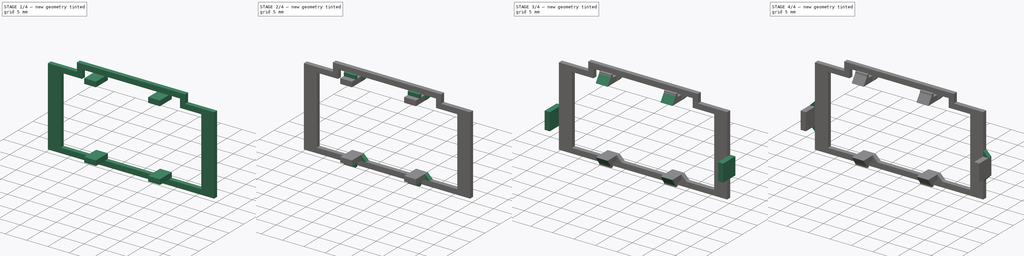
[diagram: build sequence overview — one tinted view per stage of 4, left to right]
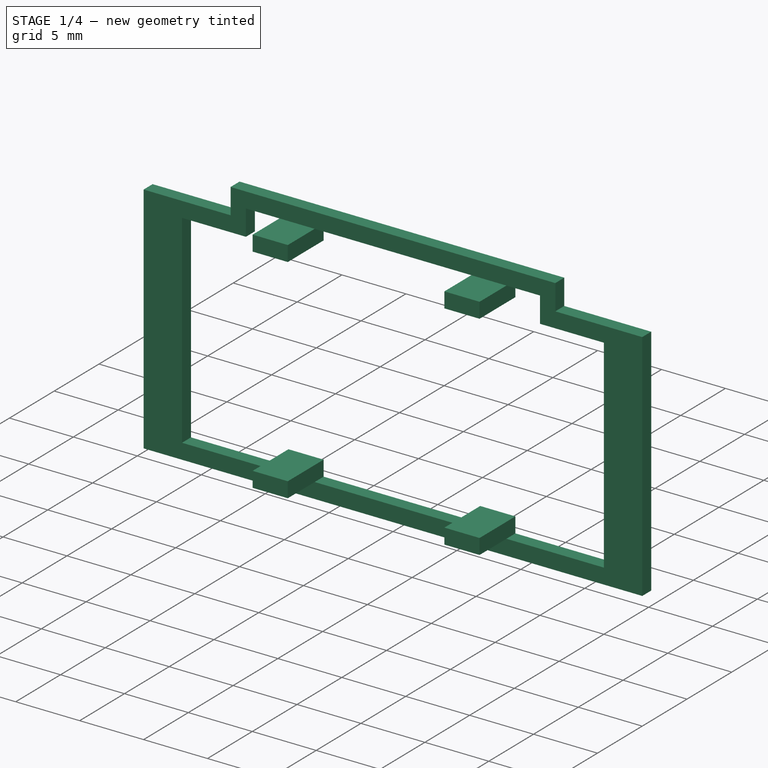
[diagram: stage 1 of 4 — iso view after this stage's code; geometry added in this stage tinted green]
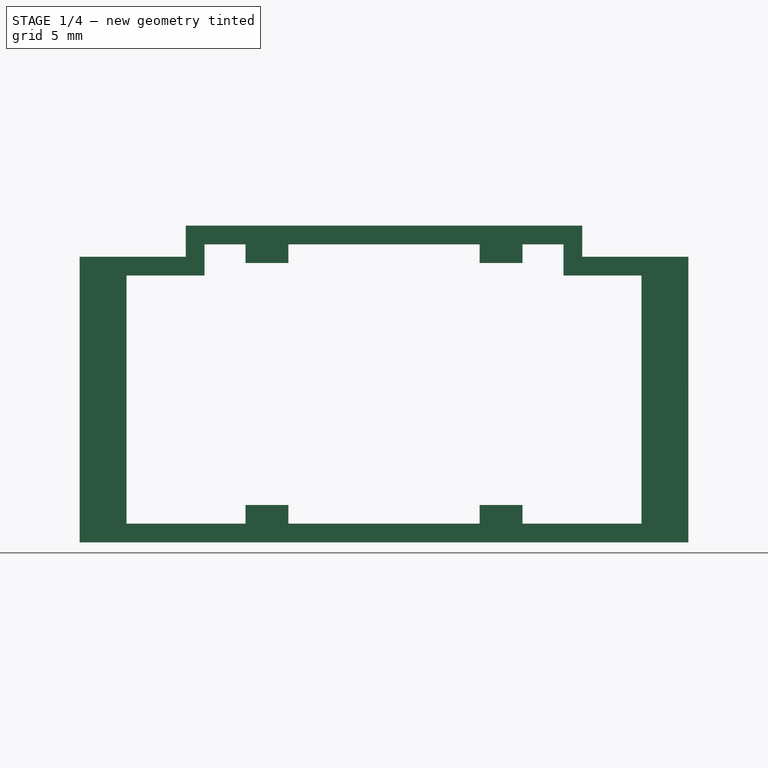
[diagram: stage 1 of 4 — front view after this stage's code; geometry added in this stage tinted green]
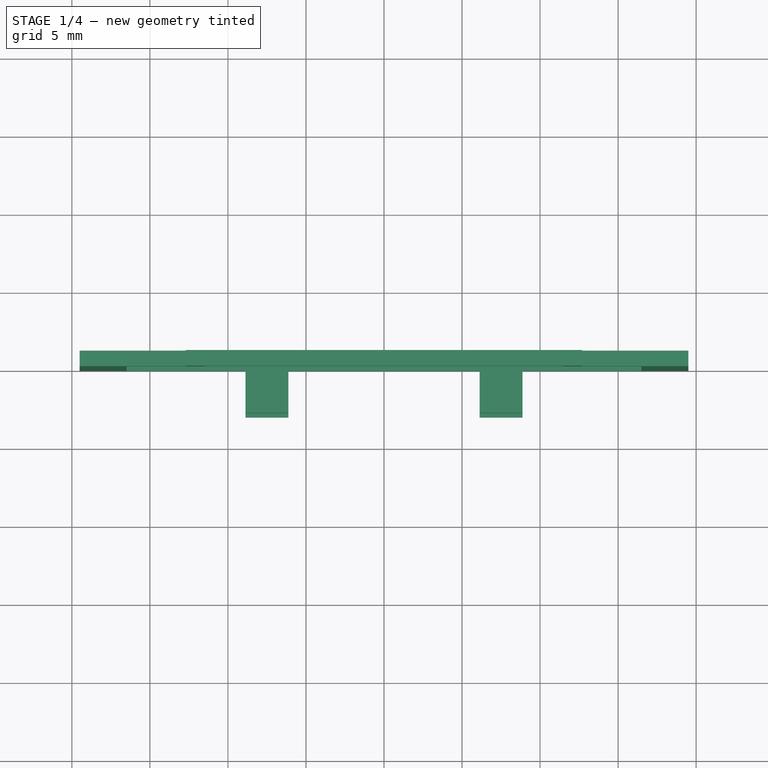
[diagram: stage 1 of 4 — top view after this stage's code; geometry added in this stage tinted green]
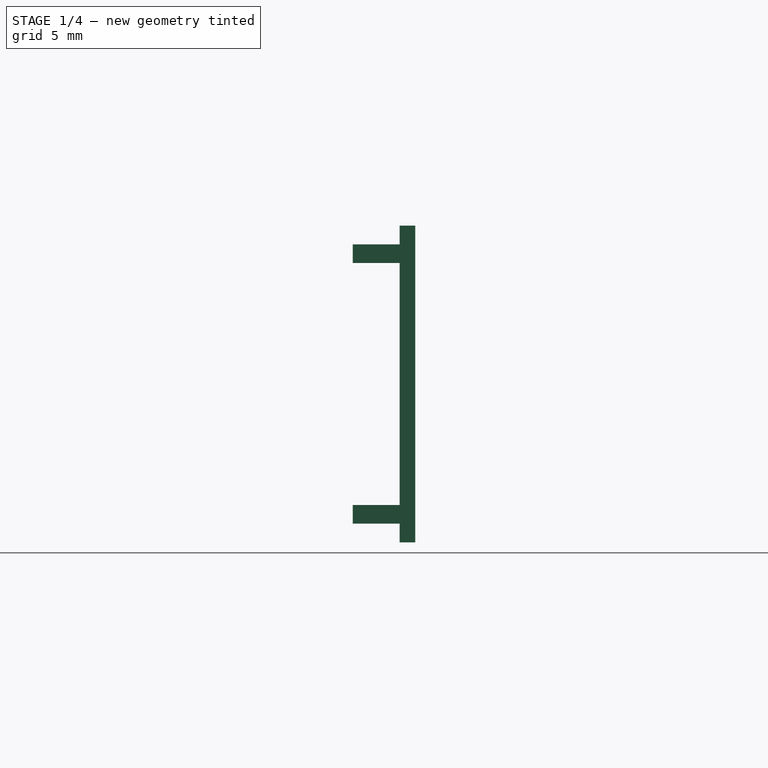
[diagram: stage 1 of 4 — right view after this stage's code; geometry added in this stage tinted green]
FCSTD DOCUMENT  (FreeCAD 0.18R15441 (Git))
Label: FrontFanCaseClip_40x40
License: All rights reserved
LicenseURL: http://en.wikipedia.org/wiki/All_rights_reserved
objects: Sketcher::SketchObject×4, PartDesign::Pad×4, PartDesign::Chamfer×3, PartDesign::Plane×1, PartDesign::Fillet×1, PartDesign::Body×1, Part::FeaturePython×1, App::Part×1
note: 19 computed .brp shape members not serialized (recipe doc carries the construction recipe); baked Part::Feature solids carry a one-line shape summary decoded from their .brp

FEATURE [Sketcher::SketchObject] Sketch  label="Base"
  MapMode = 5
  Placement = pos=(0,0,0) rot=(1,0,0;1.5708rad)
  Support = -> [XZ_Plane001]
  sketch-geometry (16):
    g0: LineSegment StartX=-16.5 StartY=-7.95 StartZ=0 EndX=16.5 EndY=-7.95 EndZ=0
    g1: LineSegment StartX=-16.5 StartY=-7.95 StartZ=0 EndX=-16.5 EndY=7.95 EndZ=0
    g2: LineSegment StartX=-16.5 StartY=7.95 StartZ=0 EndX=-11.5 EndY=7.95 EndZ=0
    g3: LineSegment StartX=-11.5 StartY=7.95 StartZ=0 EndX=-11.5 EndY=9.95 EndZ=0
    g4: LineSegment StartX=-11.5 StartY=9.95 StartZ=0 EndX=11.5 EndY=9.95 EndZ=0
    g5: LineSegment StartX=11.5 StartY=9.95 StartZ=0 EndX=11.5 EndY=7.95 EndZ=0
    g6: LineSegment StartX=11.5 StartY=7.95 StartZ=0 EndX=16.5 EndY=7.95 EndZ=0
    g7: LineSegment StartX=16.5 StartY=7.95 StartZ=0 EndX=16.5 EndY=-7.95 EndZ=0
    g8: LineSegment StartX=-19.5 StartY=-9.15 StartZ=0 EndX=19.5 EndY=-9.15 EndZ=0
    g9: LineSegment StartX=-19.5 StartY=-9.15 StartZ=0 EndX=-19.5 EndY=9.15 EndZ=0
    g10: LineSegment StartX=-19.5 StartY=9.15 StartZ=0 EndX=-12.7 EndY=9.15 EndZ=0
    g11: LineSegment StartX=-12.7 StartY=9.15 StartZ=0 EndX=-12.7 EndY=11.15 EndZ=0
    g12: LineSegment StartX=-12.7 StartY=11.15 StartZ=0 EndX=12.7 EndY=11.15 EndZ=0
    g13: LineSegment StartX=12.7 StartY=11.15 StartZ=0 EndX=12.7 EndY=9.15 EndZ=0
    g14: LineSegment StartX=12.7 StartY=9.15 StartZ=0 EndX=19.5 EndY=9.15 EndZ=0
    g15: LineSegment StartX=19.5 StartY=9.15 StartZ=0 EndX=19.5 EndY=-9.15 EndZ=0
  constraints (45):
    c: Coincident(g1,g0)
    c: Coincident(g2,g1)
    c: Coincident(g3,g2)
    c: Vertical(g3)
    c: Coincident(g4,g3)
    c: Horizontal(g4)
    c: Coincident(g5,g4)
    c: Vertical(g5)
    c: Coincident(g6,g5)
    c: Horizontal(g6)
    c: Coincident(g7,g6)
    c: Coincident(g7,g0)
    c: Symmetric(g0,g0,g-2)
    c: Vertical(g7)
    c: Horizontal(g2)
    c: Equal(g2,g6)
    c: Equal(g7,g1)
    c: Distance(g0) = 33
    c: Distance(g1) = 15.9
    c: Distance(g4) = 23
    c: Distance(g3) = 2
    c: Symmetric(g0,g1,g-1)
    c: Vertical(g9)
    c: Coincident(g10,g9)
    c: Horizontal(g10)
    c: Coincident(g11,g10)
    c: Vertical(g11)
    c: Coincident(g12,g11)
    c: Horizontal(g12)
    c: Coincident(g13,g12)
    c: Vertical(g13)
    c: Coincident(g14,g13)
    c: Horizontal(g14)
    c: Coincident(g15,g14)
    c: Vertical(g15)
    c: Equal(g9,g15)
    c: Equal(g10,g14)
    c: Distance(g1,g10) = 1.2
    c: Distance(g10,g3) = 1.2
    c: Distance(g3,g12) = 1.2
    c: Coincident(g8,g15)
    c: Coincident(g9,g8)
    c: Distance(g0,g8) = 1.2
    c: Symmetric(g8,g8,g-2)
    c: Distance(g9,g14) = 39
FEATURE [PartDesign::Pad] Pad  label="BasePad"
  Length = 1
  Length2 = 100
  Placement = pos=(0,0,0) rot=(1,0,0;1.5708rad)
  Profile = -> Sketch
  Reversed = true
  Type = 0
FEATURE [Sketcher::SketchObject] Sketch001  label="ClipsBaseSketch"
  ExternalGeometry = -> [Sketch]
  MapMode = 5
  Placement = pos=(0,0,0) rot=(1,0,0;1.5708rad)
  Support = -> [XZ_Plane001]
  sketch-geometry (18):
    g0: LineSegment StartX=-8.875 StartY=9.95 StartZ=0 EndX=-6.125 EndY=9.95 EndZ=0
    g1: LineSegment StartX=-6.125 StartY=9.95 StartZ=0 EndX=-6.125 EndY=8.75 EndZ=0
    g2: LineSegment StartX=-6.125 StartY=8.75 StartZ=0 EndX=-8.875 EndY=8.75 EndZ=0
    g3: LineSegment StartX=-8.875 StartY=8.75 StartZ=0 EndX=-8.875 EndY=9.95 EndZ=0
    g4: LineSegment StartX=6.125 StartY=9.95 StartZ=0 EndX=8.875 EndY=9.95 EndZ=0
    g5: LineSegment StartX=8.875 StartY=9.95 StartZ=0 EndX=8.875 EndY=8.75 EndZ=0
    g6: LineSegment StartX=8.875 StartY=8.75 StartZ=0 EndX=6.125 EndY=8.75 EndZ=0
    g7: LineSegment StartX=6.125 StartY=8.75 StartZ=0 EndX=6.125 EndY=9.95 EndZ=0
    g8: LineSegment StartX=-8.875 StartY=-7.95 StartZ=0 EndX=-6.125 EndY=-7.95 EndZ=0
    g9: LineSegment StartX=-6.125 StartY=-7.95 StartZ=0 EndX=-6.125 EndY=-6.75 EndZ=0
    g10: LineSegment StartX=-6.125 StartY=-6.75 StartZ=0 EndX=-8.875 EndY=-6.75 EndZ=0
    g11: LineSegment StartX=-8.875 StartY=-6.75 StartZ=0 EndX=-8.875 EndY=-7.95 EndZ=0
    g12: LineSegment StartX=6.125 StartY=-7.95 StartZ=0 EndX=8.875 EndY=-7.95 EndZ=0
    g13: LineSegment StartX=8.875 StartY=-7.95 StartZ=0 EndX=8.875 EndY=-6.75 EndZ=0
    g14: LineSegment StartX=8.875 StartY=-6.75 StartZ=0 EndX=6.125 EndY=-6.75 EndZ=0
    g15: LineSegment StartX=6.125 StartY=-6.75 StartZ=0 EndX=6.125 EndY=-7.95 EndZ=0
    g16: LineSegment [constr] StartX=8.875 StartY=8.75 StartZ=0 EndX=8.875 EndY=-6.75 EndZ=0
    g17: LineSegment [constr] StartX=-8.875 StartY=8.75 StartZ=0 EndX=-8.875 EndY=-6.75 EndZ=0
  constraints (51):
    c: Coincident(g0,g1)
    c: Coincident(g1,g2)
    c: Coincident(g2,g3)
    c: Coincident(g3,g0)
    c: Horizontal(g0)
    c: Horizontal(g2)
    c: Vertical(g1)
    c: Vertical(g3)
    c: PointOnObject(g0,g-4)
    c: Coincident(g4,g5)
    c: Coincident(g5,g6)
    c: Coincident(g6,g7)
    c: Coincident(g7,g4)
    c: Horizontal(g4)
    c: Horizontal(g6)
    c: Vertical(g5)
    c: Vertical(g7)
    c: Symmetric(g0,g4,g-2)
    c: Distance(g0,g4) = 12.25
    c: Equal(g0,g4)
    c: Equal(g3,g7)
    c: Distance(g0) = 2.75
    c: Distance(g3) = 1.2
    c: Coincident(g8,g9)
    c: Coincident(g9,g10)
    c: Coincident(g10,g11)
    c: Coincident(g11,g8)
    c: Horizontal(g8)
    c: Horizontal(g10)
    c: Vertical(g9)
    c: Vertical(g11)
    c: PointOnObject(g8,g-3)
    c: Coincident(g12,g13)
    c: Coincident(g13,g14)
    c: Coincident(g14,g15)
    c: Coincident(g15,g12)
    c: Horizontal(g12)
    c: Horizontal(g14)
    c: Vertical(g13)
    c: Vertical(g15)
    c: PointOnObject(g12,g-3)
    c: Coincident(g16,g5)
    c: Coincident(g16,g13)
    c: Vertical(g16)
    c: Coincident(g17,g2)
    c: Coincident(g17,g10)
    c: Vertical(g17)
    c: Equal(g10,g2)
    c: Equal(g14,g6)
    c: Equal(g1,g9)
    c: Equal(g7,g15)
FEATURE [PartDesign::Pad] Pad001  label="ClipsBasePad"
  BaseFeature = -> Pad
  Length = 3
  Length2 = 1
  Placement = pos=(0,0,0) rot=(1,0,0;1.5708rad)
  Profile = -> Sketch001
  Type = 4
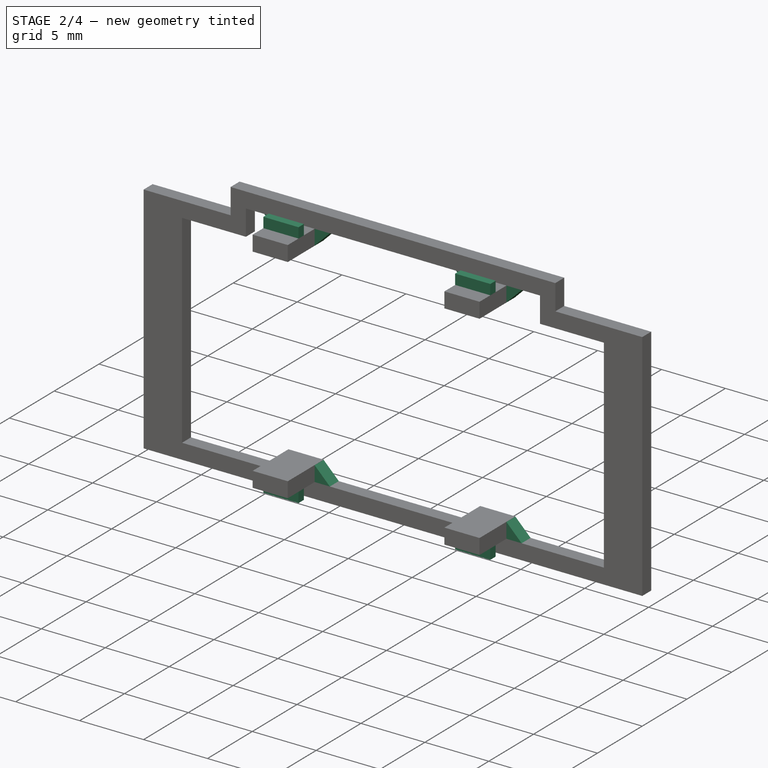
[diagram: stage 2 of 4 — iso view after this stage's code; geometry added in this stage tinted green]
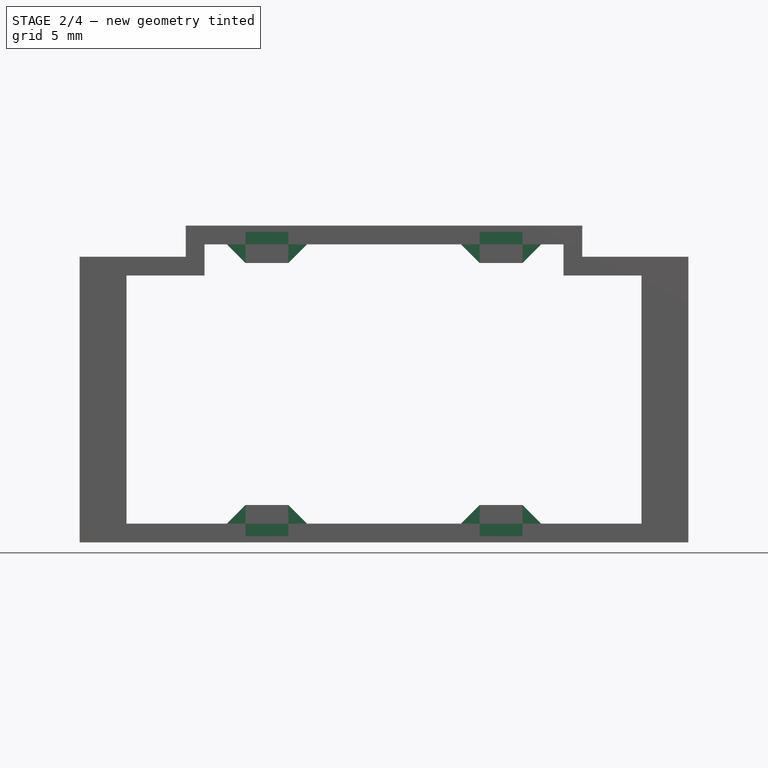
[diagram: stage 2 of 4 — front view after this stage's code; geometry added in this stage tinted green]
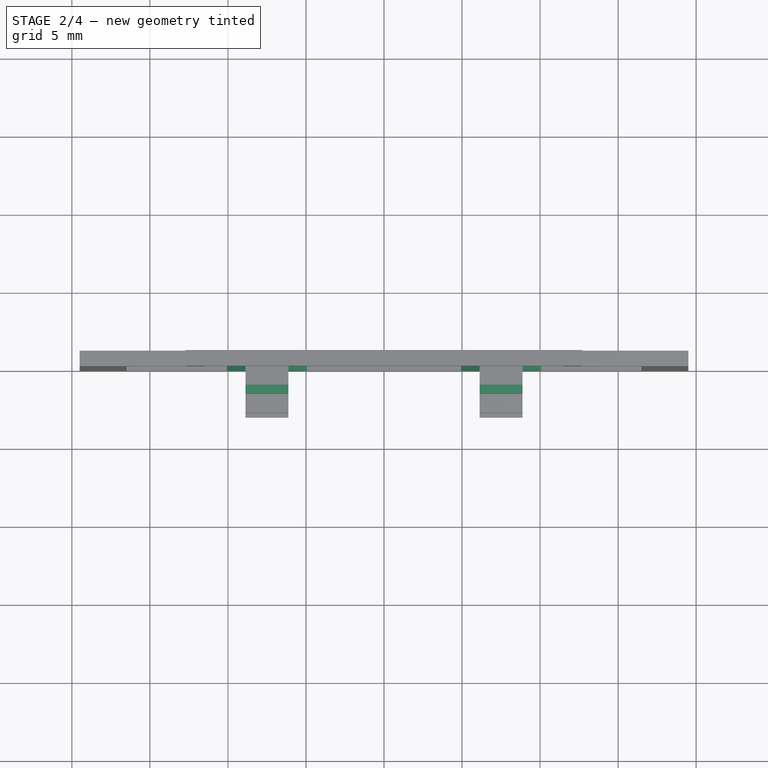
[diagram: stage 2 of 4 — top view after this stage's code; geometry added in this stage tinted green]
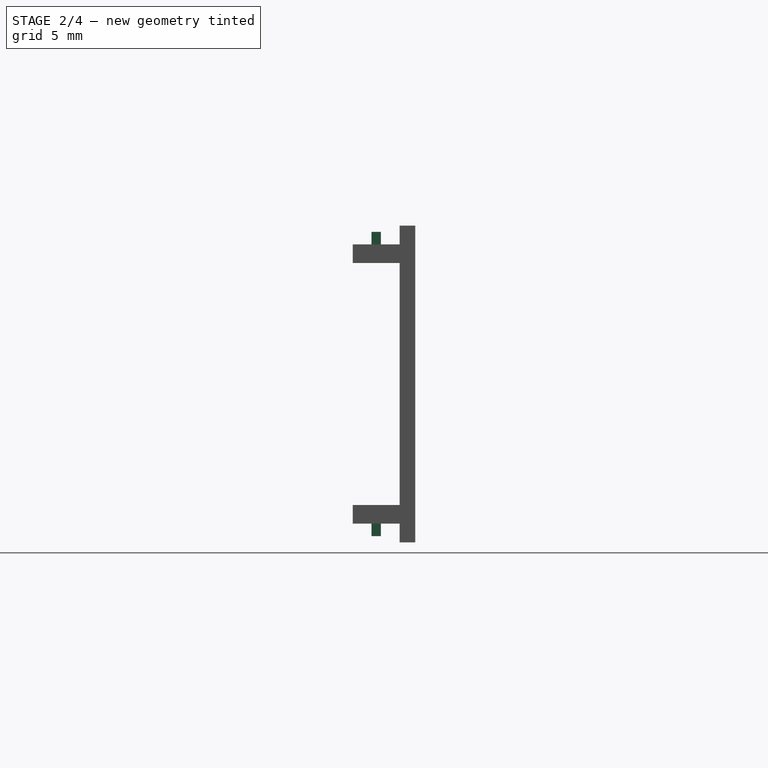
[diagram: stage 2 of 4 — right view after this stage's code; geometry added in this stage tinted green]
FEATURE [PartDesign::Chamfer] Chamfer  label="ClipsBaseChamfer"
  Base = -> Pad001 [Edge80,Edge75,Edge79,Edge84,Edge71,Edge65,Edge66,Edge61]
  BaseFeature = -> Pad001
  Placement = pos=(0,0,0) rot=(1,0,0;1.5708rad)
  Size = 1.19
FEATURE [PartDesign::Plane] DatumPlane  label="ClipsNotchPlane"
  AttachmentOffset = pos=(0,0,1.2) rot=(0,0,1;0rad)
  Length = 47.3181
  MapMode = 5
  Placement = pos=(0,-1.2,-1.242e-13) rot=(1,0,0;1.5708rad)
  ResizeMode = 0
  Support = -> [XZ_Plane001]
  Width = 27.0681
FEATURE [Sketcher::SketchObject] Sketch002  label="LipsSketch"
  ExternalGeometry = -> [Sketch001]
  MapMode = 5
  Placement = pos=(0,-1.2,-1.242e-13) rot=(1,0,0;1.5708rad)
  Support = -> [DatumPlane]
  sketch-geometry (16):
    g0: LineSegment StartX=-8.875 StartY=8.75 StartZ=0 EndX=-6.125 EndY=8.75 EndZ=0
    g1: LineSegment StartX=-6.125 StartY=8.75 StartZ=0 EndX=-6.125 EndY=10.75 EndZ=0
    g2: LineSegment StartX=-6.125 StartY=10.75 StartZ=0 EndX=-8.875 EndY=10.75 EndZ=0
    g3: LineSegment StartX=-8.875 StartY=10.75 StartZ=0 EndX=-8.875 EndY=8.75 EndZ=0
    g4: LineSegment StartX=8.875 StartY=8.75 StartZ=0 EndX=6.125 EndY=8.75 EndZ=0
    g5: LineSegment StartX=6.125 StartY=8.75 StartZ=0 EndX=6.125 EndY=10.75 EndZ=0
    g6: LineSegment StartX=6.125 StartY=10.75 StartZ=0 EndX=8.875 EndY=10.75 EndZ=0
    g7: LineSegment StartX=8.875 StartY=10.75 StartZ=0 EndX=8.875 EndY=8.75 EndZ=0
    g8: LineSegment StartX=8.875 StartY=-6.75 StartZ=0 EndX=6.125 EndY=-6.75 EndZ=0
    g9: LineSegment StartX=6.125 StartY=-6.75 StartZ=0 EndX=6.125 EndY=-8.75 EndZ=0
    g10: LineSegment StartX=6.125 StartY=-8.75 StartZ=0 EndX=8.875 EndY=-8.75 EndZ=0
    g11: LineSegment StartX=8.875 StartY=-8.75 StartZ=0 EndX=8.875 EndY=-6.75 EndZ=0
    g12: LineSegment StartX=-8.875 StartY=-6.75 StartZ=0 EndX=-6.125 EndY=-6.75 EndZ=0
    g13: LineSegment StartX=-6.125 StartY=-6.75 StartZ=0 EndX=-6.125 EndY=-8.75 EndZ=0
    g14: LineSegment StartX=-6.125 StartY=-8.75 StartZ=0 EndX=-8.875 EndY=-8.75 EndZ=0
    g15: LineSegment StartX=-8.875 StartY=-8.75 StartZ=0 EndX=-8.875 EndY=-6.75 EndZ=0
  constraints (43):
    c: Coincident(g0,g1)
    c: Coincident(g1,g2)
    c: Coincident(g2,g3)
    c: Coincident(g3,g0)
    c: Horizontal(g2)
    c: Vertical(g1)
    c: Vertical(g3)
    c: Coincident(g0,g-3)
    c: Coincident(g4,g5)
    c: Coincident(g5,g6)
    c: Coincident(g6,g7)
    c: Coincident(g7,g4)
    c: Horizontal(g4)
    c: Horizontal(g6)
    c: Vertical(g5)
    c: Vertical(g7)
    c: Coincident(g4,g-6)
    c: Coincident(g8,g9)
    c: Coincident(g9,g10)
    c: Coincident(g10,g11)
    c: Coincident(g11,g8)
    c: Horizontal(g8)
    c: Horizontal(g10)
    c: Vertical(g9)
    c: Vertical(g11)
    c: Coincident(g8,g-5)
    c: Coincident(g12,g13)
    c: Coincident(g13,g14)
    c: Coincident(g14,g15)
    c: Coincident(g15,g12)
    c: Horizontal(g12)
    c: Horizontal(g14)
    c: Vertical(g13)
    c: Vertical(g15)
    c: Coincident(g12,g-4)
    c: Equal(g13,g9)
    c: Equal(g9,g5)
    c: Equal(g5,g1)
    c: Equal(g2,g6)
    c: Equal(g6,g10)
    c: Equal(g10,g14)
    c: Coincident(g0,g-3)
    c: Distance(g3) = 2
FEATURE [PartDesign::Pad] Pad002  label="LipsPad"
  BaseFeature = -> Chamfer
  Length = 0.6
  Length2 = 100
  Placement = pos=(0,0,0) rot=(1,0,0;1.5708rad)
  Profile = -> Sketch002
  Type = 0
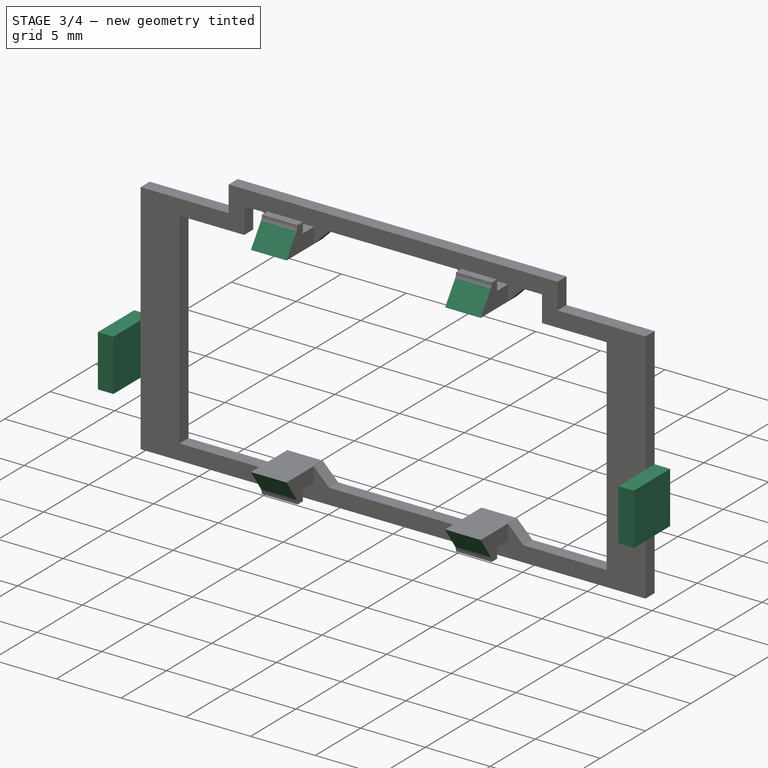
[diagram: stage 3 of 4 — iso view after this stage's code; geometry added in this stage tinted green]
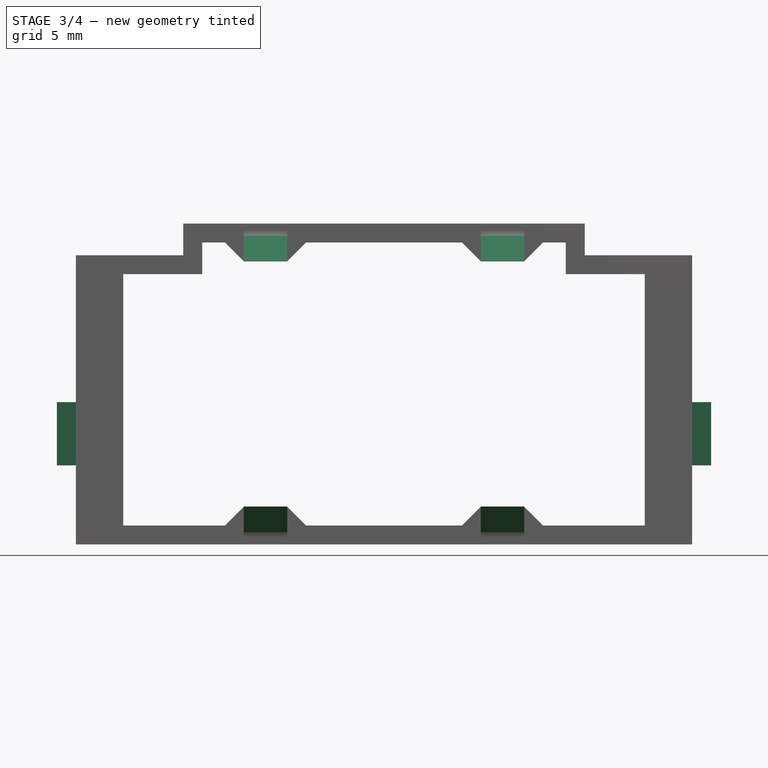
[diagram: stage 3 of 4 — front view after this stage's code; geometry added in this stage tinted green]
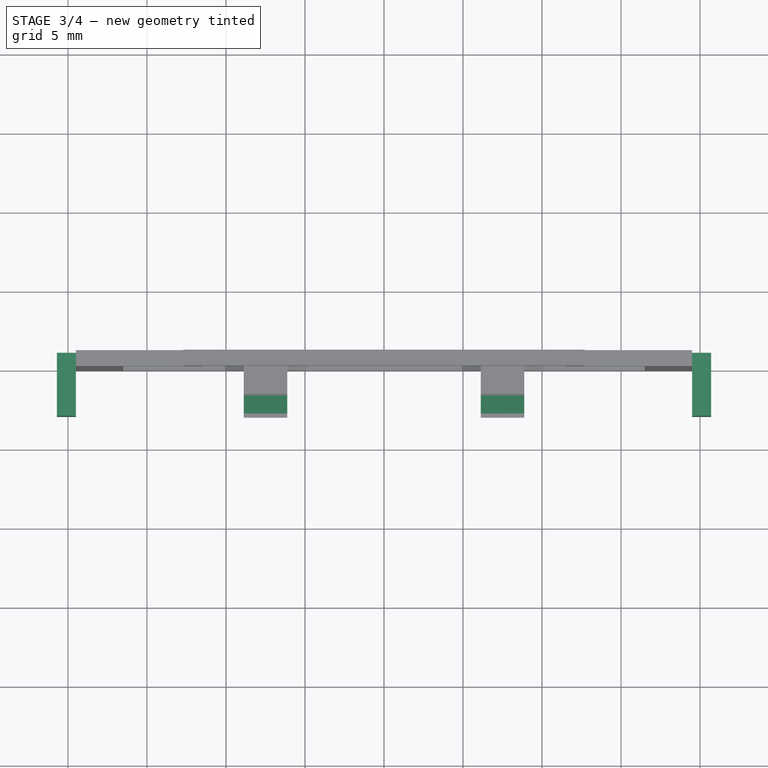
[diagram: stage 3 of 4 — top view after this stage's code; geometry added in this stage tinted green]
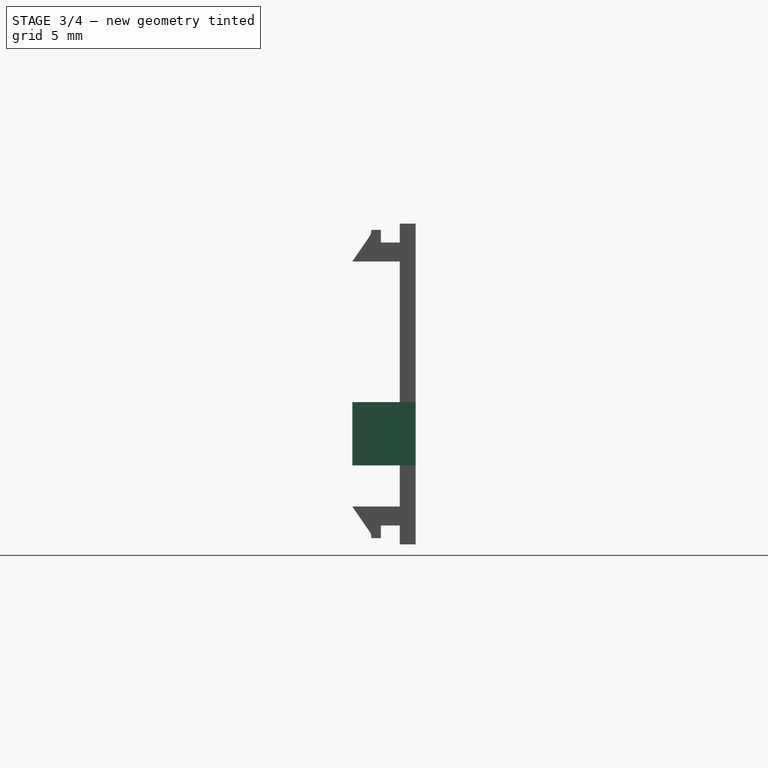
[diagram: stage 3 of 4 — right view after this stage's code; geometry added in this stage tinted green]
FEATURE [PartDesign::Fillet] Fillet  label="LipsFillet"
  Base = -> Pad002 [Edge247,Edge241,Edge244,Edge250]
  BaseFeature = -> Pad002
  Placement = pos=(0,0,0) rot=(1,0,0;1.5708rad)
  Radius = 0.79
FEATURE [PartDesign::Chamfer] Chamfer001  label="LipsChamfer"
  Base = -> Fillet [Edge267,Edge25,Edge263,Edge271]
  BaseFeature = -> Fillet
  Placement = pos=(0,0,0) rot=(1,0,0;1.5708rad)
  Size = 1.19
FEATURE [Sketcher::SketchObject] Sketch003  label="SideLipsSketch"
  ExternalGeometry = -> [Sketch]
  MapMode = 5
  Placement = pos=(0,0,0) rot=(1,0,0;1.5708rad)
  Support = -> [XZ_Plane001]
  sketch-geometry (8):
    g0: LineSegment StartX=19.5 StartY=-0.15 StartZ=0 EndX=20.7 EndY=-0.15 EndZ=0
    g1: LineSegment StartX=20.7 StartY=-0.15 StartZ=0 EndX=20.7 EndY=-4.15 EndZ=0
    g2: LineSegment StartX=20.7 StartY=-4.15 StartZ=0 EndX=19.5 EndY=-4.15 EndZ=0
    g3: LineSegment StartX=19.5 StartY=-4.15 StartZ=0 EndX=19.5 EndY=-0.15 EndZ=0
    g4: LineSegment StartX=-19.5 StartY=-0.15 StartZ=0 EndX=-20.7 EndY=-0.15 EndZ=0
    g5: LineSegment StartX=-20.7 StartY=-0.15 StartZ=0 EndX=-20.7 EndY=-4.15 EndZ=0
    g6: LineSegment StartX=-20.7 StartY=-4.15 StartZ=0 EndX=-19.5 EndY=-4.15 EndZ=0
    g7: LineSegment StartX=-19.5 StartY=-4.15 StartZ=0 EndX=-19.5 EndY=-0.15 EndZ=0
  constraints (24):
    c: Coincident(g0,g1)
    c: Coincident(g1,g2)
    c: Coincident(g2,g3)
    c: Coincident(g3,g0)
    c: Horizontal(g0)
    c: Horizontal(g2)
    c: Vertical(g1)
    c: Vertical(g3)
    c: PointOnObject(g0,g-3)
    c: Coincident(g4,g5)
    c: Coincident(g5,g6)
    c: Coincident(g6,g7)
    c: Coincident(g7,g4)
    c: Horizontal(g4)
    c: Horizontal(g6)
    c: Vertical(g5)
    c: Vertical(g7)
    c: PointOnObject(g4,g-4)
    c: Distance(g6,g-4) = 5
    c: Distance(g2,g-3) = 5
    c: Distance(g5) = 4
    c: Equal(g4,g0)
    c: Equal(g5,g1)
    c: Distance(g4) = 1.2
FEATURE [PartDesign::Pad] Pad003  label="SideLipsPad"
  BaseFeature = -> Chamfer001
  Length = 3
  Length2 = 1
  Placement = pos=(0,0,0) rot=(1,0,0;1.5708rad)
  Profile = -> Sketch003
  Type = 4
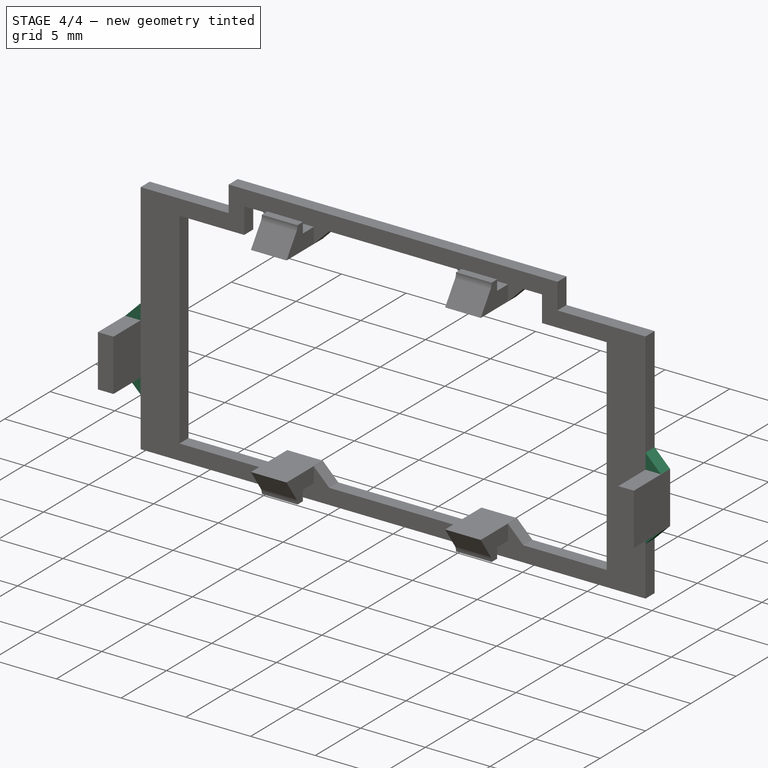
[diagram: stage 4 of 4 — iso view after this stage's code; geometry added in this stage tinted green]
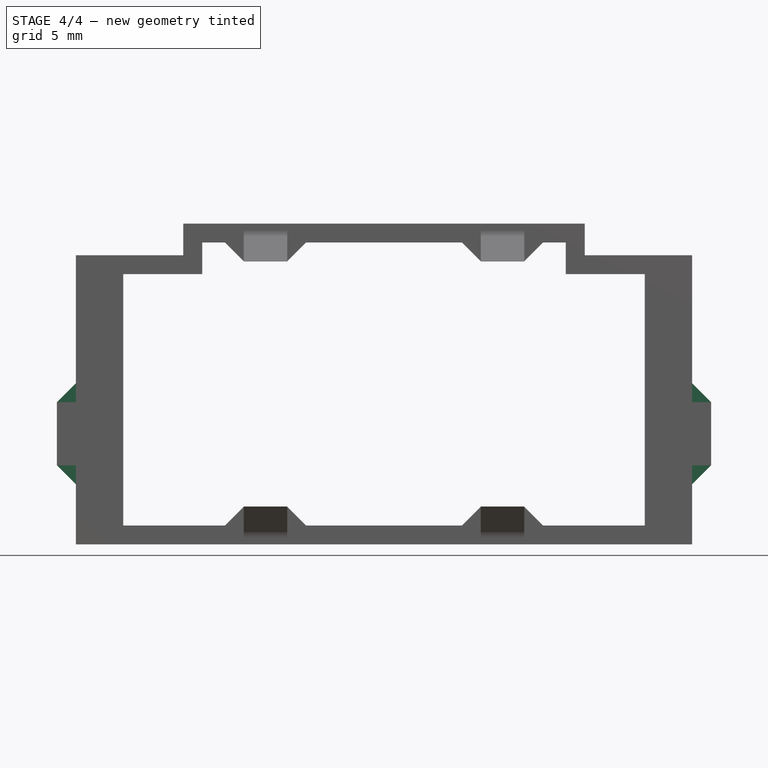
[diagram: stage 4 of 4 — front view after this stage's code; geometry added in this stage tinted green]
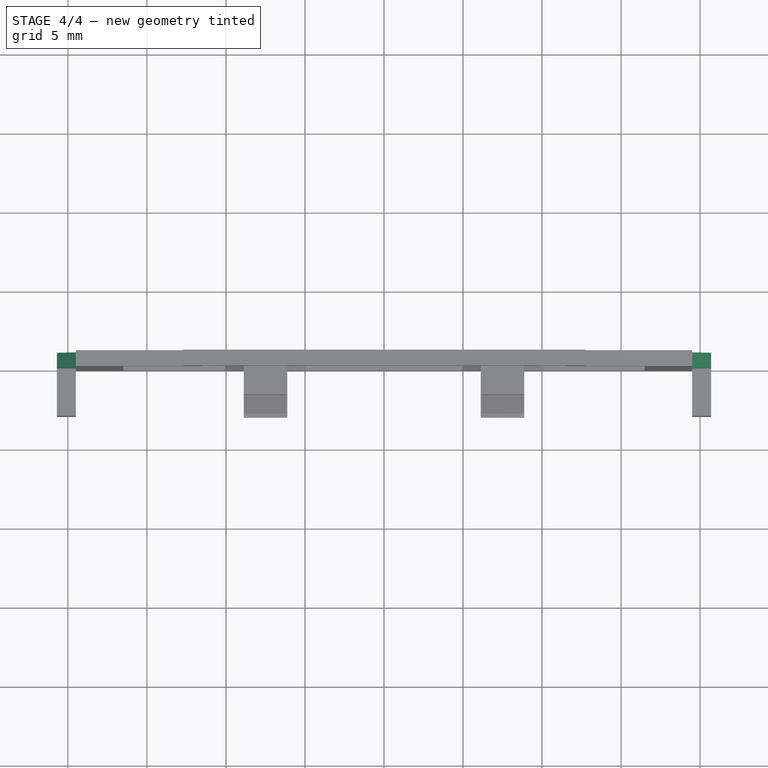
[diagram: stage 4 of 4 — top view after this stage's code; geometry added in this stage tinted green]
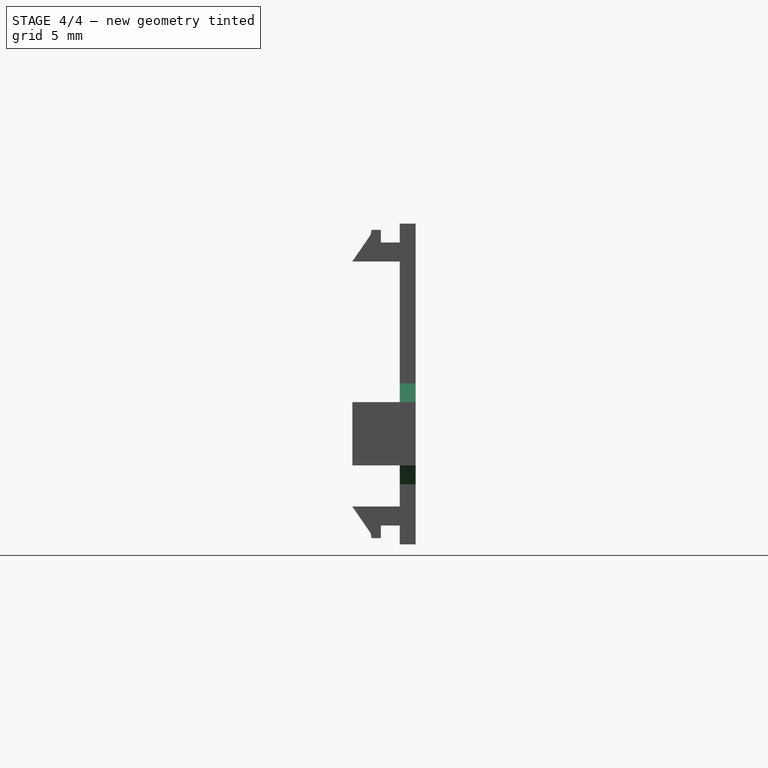
[diagram: stage 4 of 4 — right view after this stage's code; geometry added in this stage tinted green]
FEATURE [PartDesign::Chamfer] Chamfer002  label="SideLipsChanfer"
  Base = -> Pad003 [Edge180,Edge186,Edge169,Edge162]
  BaseFeature = -> Pad003
  Placement = pos=(0,0,0) rot=(1,0,0;1.5708rad)
  Size = 1.19
FEATURE [PartDesign::Body] Body  label="ClipBody"
  Group = -> [Sketch,Pad,Sketch001,Pad001,Chamfer,DatumPlane,Sketch002,Pad002,Fillet,Chamfer001,Sketch003,Pad003,Chamfer002]
  Origin = -> Origin001
  Tip = -> Chamfer002
FEATURE [Part::FeaturePython] refine  label="ClipBody_Refined"  # WARN: FeaturePython — macro-defined, semantics opaque (R4)
  Base = -> Body
FEATURE [App::Part] Part  label="ClipPart"
  Group = -> [Body,refine]
  License = CC BY 3.0
  LicenseURL = http://creativecommons.org/licenses/by/3.0/
  Origin = -> Origin
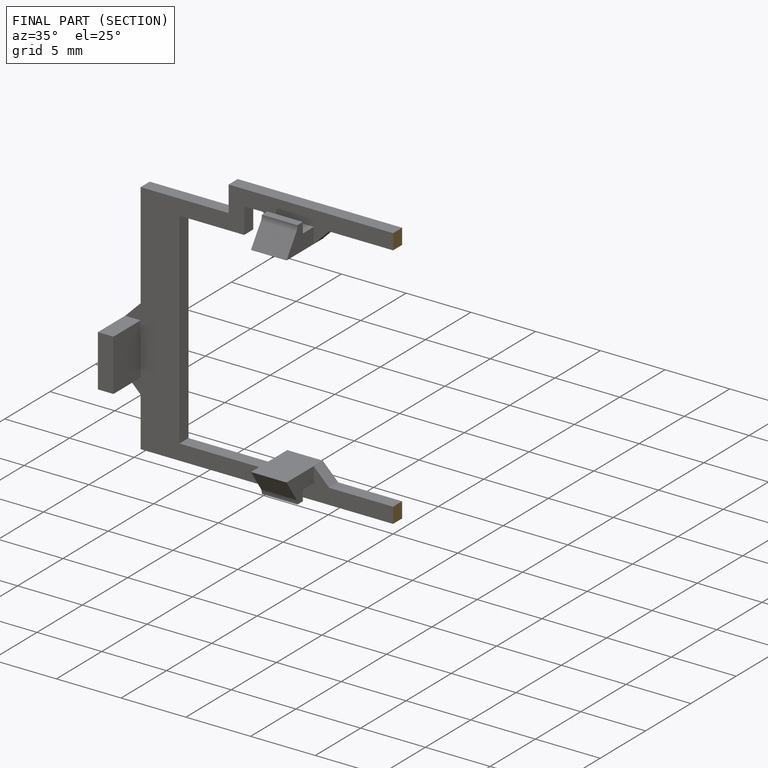
[diagram: finished part — half-section view (interior)]
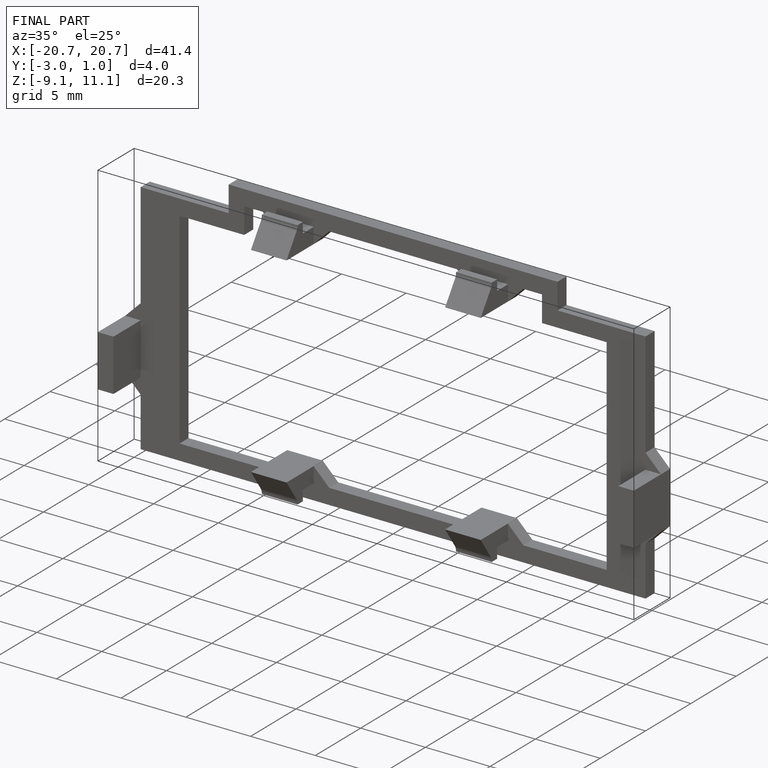
[diagram: finished part — iso view with bounding-box wireframe]
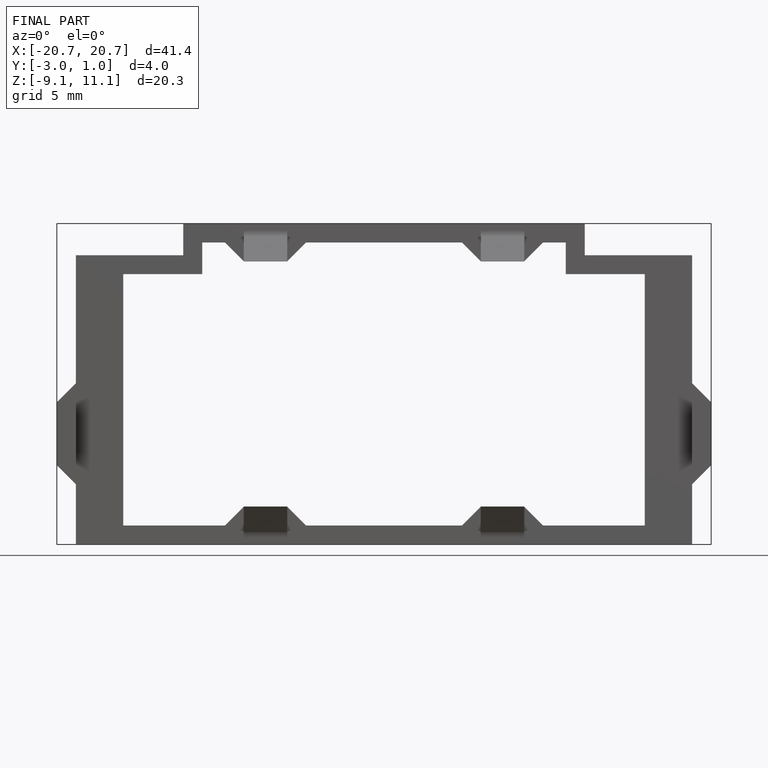
[diagram: finished part — front view with bounding-box wireframe]
